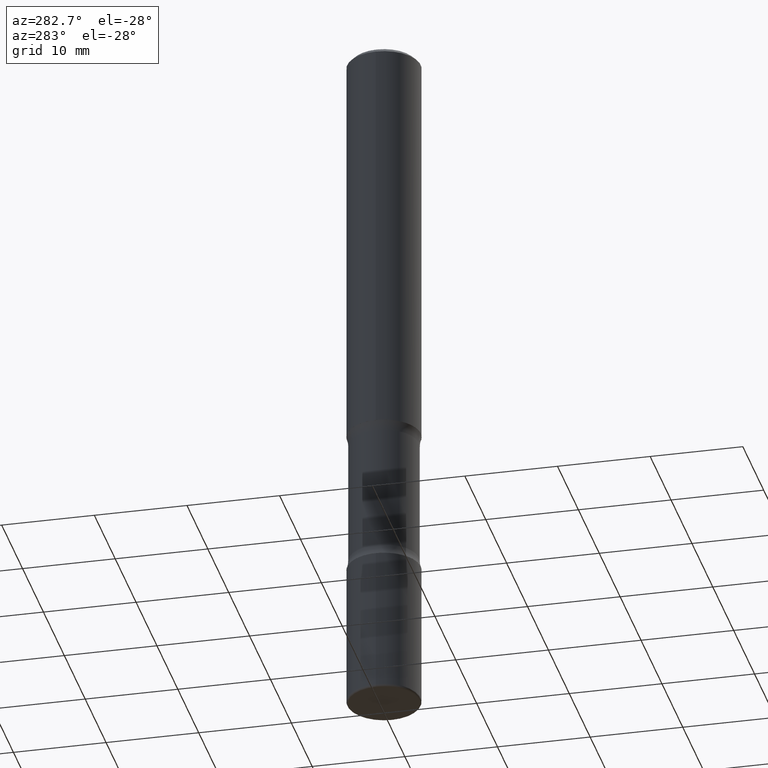
[diagram: clean part render]
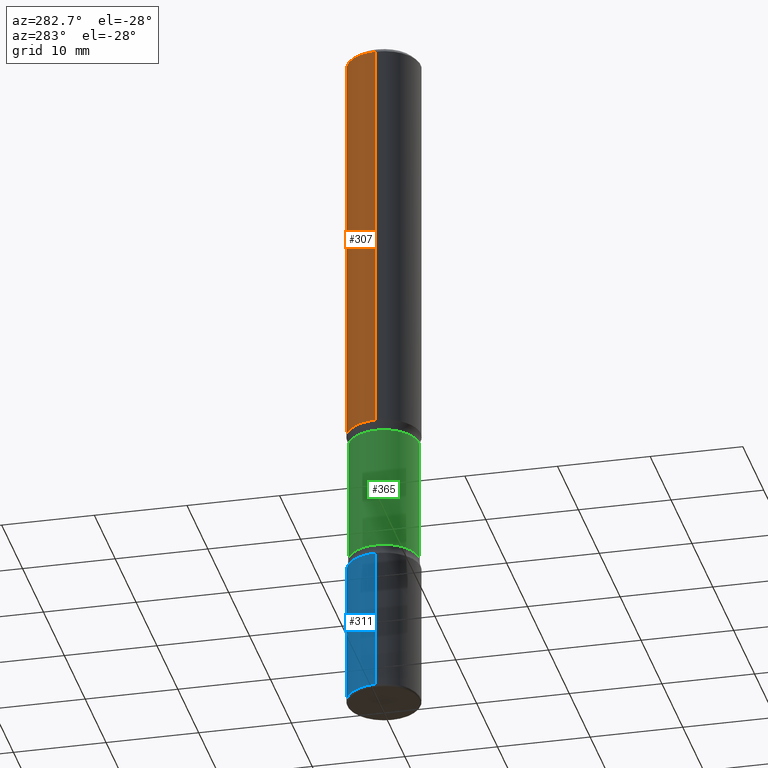
[diagram: same view with three faces highlighted in distinct colors, each labeled with its STEP entity id]
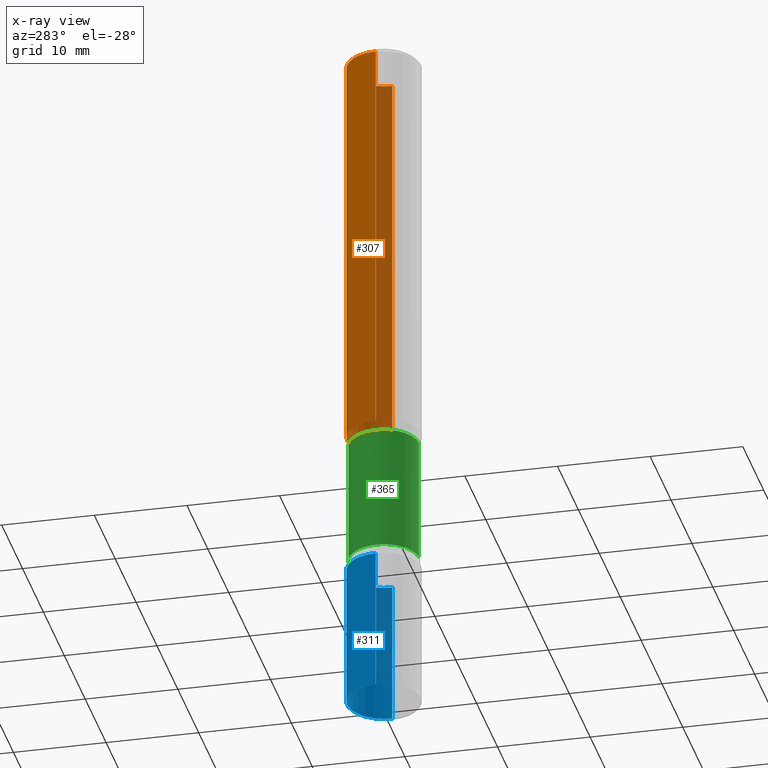
[diagram: x-ray of the same camera — body ghosted, the three highlighted faces saturated]
A machine part, auxiliary view with three faces highlighted in distinct colors.
The next image is the same camera in x-ray (body ghosted, the three faces saturated) — at least one of them is partly hidden behind the body in this view.
Their STEP definitions:

[orange] entity #307 — the highlighted cylindrical surface (partial cylindrical patch) has radius 3.9687 mm, axis along (-0, 0, 1).
#16 = ORIENTED_EDGE ( 'NONE', *, *, #265, .T. ) ;
#17 = CARTESIAN_POINT ( 'NONE',  ( 0.1562500000000000833, -7.201180261363985422E-15, -1.750000000000000444 ) ) ;
#27 = CARTESIAN_POINT ( 'NONE',  ( -0.1562500000000000833, -1.979737960251025472E-15, -1.750000000000000444 ) ) ;
#32 = ORIENTED_EDGE ( 'NONE', *, *, #301, .F. ) ;
#48 = DIRECTION ( 'NONE',  ( 1.000000000000000000, -6.982962677686266711E-15, 4.876176775795936353E-29 ) ) ;
#53 = DIRECTION ( 'NONE',  ( 1.000000000000000000, -6.982962677686265133E-15, 0.000000000000000000 ) ) ;
#59 = CIRCLE ( 'NONE', #130, 0.1562500000000000833 ) ;
#66 = AXIS2_PLACEMENT_3D ( 'NONE', #473, #438, #48 ) ;
#72 = FACE_OUTER_BOUND ( 'NONE', #92, .T. ) ;
#80 = EDGE_CURVE ( 'NONE', #261, #515, #308, .T. ) ;
#91 = DIRECTION ( 'NONE',  ( -2.445468806185136597E-29, 3.491481338843145583E-15, 1.000000000000000000 ) ) ;
#92 = EDGE_LOOP ( 'NONE', ( #16, #212, #32, #126 ) ) ;
#94 = VECTOR ( 'NONE', #534, 39.37007874015748143 ) ;
#98 = CARTESIAN_POINT ( 'NONE',  ( 0.1562499999999998612, -1.141782438928663922E-15, -0.02000000000000000042 ) ) ;
#126 = ORIENTED_EDGE ( 'NONE', *, *, #80, .F. ) ;
#130 = AXIS2_PLACEMENT_3D ( 'NONE', #491, #91, #53 ) ;
#137 = VECTOR ( 'NONE', #374, 39.37007874015748143 ) ;
#155 = LINE ( 'NONE', #201, #137 ) ;
#201 = CARTESIAN_POINT ( 'NONE',  ( -0.1562499999999999722, 1.110223024625156343E-15, -7.685836078523288357E-30 ) ) ;
#209 = DIRECTION ( 'NONE',  ( -2.445468806185136597E-29, 3.491481338843145583E-15, 1.000000000000000000 ) ) ;
#212 = ORIENTED_EDGE ( 'NONE', *, *, #283, .T. ) ;
#216 = AXIS2_PLACEMENT_3D ( 'NONE', #330, #209, #513 ) ;
#225 = CARTESIAN_POINT ( 'NONE',  ( 0.1562499999999999722, -1.091087918388478976E-15, 7.619026212181148976E-30 ) ) ;
#261 = VERTEX_POINT ( 'NONE', #17 ) ;
#265 = EDGE_CURVE ( 'NONE', #261, #392, #59, .T. ) ;
#283 = EDGE_CURVE ( 'NONE', #392, #481, #155, .T. ) ;
#301 = EDGE_CURVE ( 'NONE', #515, #481, #434, .T. ) ;
#307 = ADVANCED_FACE ( 'NONE', ( #72 ), #332, .T. ) ;
#308 = LINE ( 'NONE', #225, #94 ) ;
#330 = CARTESIAN_POINT ( 'NONE',  ( 4.890937612370273159E-31, -6.982962677686291609E-17, -0.02000000000000000042 ) ) ;
#332 = CYLINDRICAL_SURFACE ( 'NONE', #66, 0.1562499999999999722 ) ;
#366 = CARTESIAN_POINT ( 'NONE',  ( -0.1562499999999998612, 1.021258291611615284E-15, -0.02000000000000000042 ) ) ;
#374 = DIRECTION ( 'NONE',  ( -2.445468806185136877E-29, 3.491481338843145188E-15, 1.000000000000000000 ) ) ;
#392 = VERTEX_POINT ( 'NONE', #27 ) ;
#434 = CIRCLE ( 'NONE', #216, 0.1562499999999998612 ) ;
#438 = DIRECTION ( 'NONE',  ( -2.445468806185136597E-29, 3.491481338843145583E-15, 1.000000000000000000 ) ) ;
#473 = CARTESIAN_POINT ( 'NONE',  ( 0.000000000000000000, 0.000000000000000000, 0.000000000000000000 ) ) ;
#481 = VERTEX_POINT ( 'NONE', #366 ) ;
#491 = CARTESIAN_POINT ( 'NONE',  ( 4.279570410823989605E-29, -6.110092342975506249E-15, -1.750000000000000444 ) ) ;
#513 = DIRECTION ( 'NONE',  ( 1.000000000000000000, -6.982962677686266711E-15, 0.000000000000000000 ) ) ;
#515 = VERTEX_POINT ( 'NONE', #98 ) ;
#534 = DIRECTION ( 'NONE',  ( -2.445468806185136877E-29, 3.491481338843145188E-15, 1.000000000000000000 ) ) ;

[blue] entity #311 — the highlighted cylindrical surface (partial cylindrical patch) has radius 3.9688 mm, axis along (-0, 0, 1).
#1 = VERTEX_POINT ( 'NONE', #132 ) ;
#40 = ORIENTED_EDGE ( 'NONE', *, *, #482, .F. ) ;
#106 = DIRECTION ( 'NONE',  ( -2.445468806185136597E-29, 3.491481338843145583E-15, 1.000000000000000000 ) ) ;
#132 = CARTESIAN_POINT ( 'NONE',  ( 0.1562500000000001110, -9.383356098140953236E-15, -2.375000000000000444 ) ) ;
#144 = CARTESIAN_POINT ( 'NONE',  ( -0.1562500000000001110, -8.255675666821583237E-15, -2.375000000000000444 ) ) ;
#158 = ORIENTED_EDGE ( 'NONE', *, *, #404, .T. ) ;
#166 = EDGE_LOOP ( 'NONE', ( #485, #158, #340, #40 ) ) ;
#196 = CARTESIAN_POINT ( 'NONE',  ( 7.311951730493559366E-29, -1.043952920314100786E-14, -2.990000000000000657 ) ) ;
#211 = CARTESIAN_POINT ( 'NONE',  ( 0.1562500000000001665, -1.153061712152948940E-14, -2.990000000000000657 ) ) ;
#237 = CIRCLE ( 'NONE', #405, 0.1562500000000001110 ) ;
#242 = CARTESIAN_POINT ( 'NONE',  ( -0.1562500000000001388, 1.110223024625157526E-15, -7.685836078523296765E-30 ) ) ;
#243 = CARTESIAN_POINT ( 'NONE',  ( 0.000000000000000000, 0.000000000000000000, 0.000000000000000000 ) ) ;
#244 = AXIS2_PLACEMENT_3D ( 'NONE', #243, #106, #551 ) ;
#271 = CARTESIAN_POINT ( 'NONE',  ( 0.1562500000000001388, -1.091087918388480160E-15, 7.619026212181157383E-30 ) ) ;
#274 = DIRECTION ( 'NONE',  ( -2.445468806185136597E-29, 3.491481338843145583E-15, 1.000000000000000000 ) ) ;
#275 = DIRECTION ( 'NONE',  ( -2.445468806185136877E-29, 3.491481338843145188E-15, 1.000000000000000000 ) ) ;
#278 = CARTESIAN_POINT ( 'NONE',  ( 5.807988414689700538E-29, -8.292268179752471696E-15, -2.375000000000000444 ) ) ;
#280 = VECTOR ( 'NONE', #275, 39.37007874015748143 ) ;
#311 = ADVANCED_FACE ( 'NONE', ( #548 ), #368, .T. ) ;
#331 = CARTESIAN_POINT ( 'NONE',  ( -0.1562500000000001665, -9.329306178515849742E-15, -2.990000000000000657 ) ) ;
#334 = EDGE_CURVE ( 'NONE', #517, #555, #338, .T. ) ;
#338 = CIRCLE ( 'NONE', #359, 0.1562500000000001388 ) ;
#340 = ORIENTED_EDGE ( 'NONE', *, *, #382, .F. ) ;
#359 = AXIS2_PLACEMENT_3D ( 'NONE', #196, #460, #416 ) ;
#364 = LINE ( 'NONE', #242, #280 ) ;
#368 = CYLINDRICAL_SURFACE ( 'NONE', #244, 0.1562500000000001388 ) ;
#382 = EDGE_CURVE ( 'NONE', #1, #385, #237, .T. ) ;
#385 = VERTEX_POINT ( 'NONE', #144 ) ;
#404 = EDGE_CURVE ( 'NONE', #555, #385, #364, .T. ) ;
#405 = AXIS2_PLACEMENT_3D ( 'NONE', #278, #274, #506 ) ;
#416 = DIRECTION ( 'NONE',  ( 1.000000000000000000, -6.982962677686269077E-15, 0.000000000000000000 ) ) ;
#460 = DIRECTION ( 'NONE',  ( -2.445468806185136597E-29, 3.491481338843145583E-15, 1.000000000000000000 ) ) ;
#482 = EDGE_CURVE ( 'NONE', #517, #1, #538, .T. ) ;
#485 = ORIENTED_EDGE ( 'NONE', *, *, #334, .T. ) ;
#506 = DIRECTION ( 'NONE',  ( 1.000000000000000000, -6.982962677686270655E-15, 0.000000000000000000 ) ) ;
#507 = VECTOR ( 'NONE', #544, 39.37007874015748143 ) ;
#517 = VERTEX_POINT ( 'NONE', #211 ) ;
#538 = LINE ( 'NONE', #271, #507 ) ;
#544 = DIRECTION ( 'NONE',  ( -2.445468806185136877E-29, 3.491481338843145188E-15, 1.000000000000000000 ) ) ;
#548 = FACE_OUTER_BOUND ( 'NONE', #166, .T. ) ;
#551 = DIRECTION ( 'NONE',  ( 1.000000000000000000, -6.982962677686266711E-15, 4.876176775795936353E-29 ) ) ;
#555 = VERTEX_POINT ( 'NONE', #331 ) ;

[green] entity #365 — the highlighted cylindrical surface (edge-blend (fillet) strip) has radius 3.7703 mm, axis along (0, -0, -1).
#7 = VERTEX_POINT ( 'NONE', #357 ) ;
#28 = EDGE_CURVE ( 'NONE', #324, #432, #30, .T. ) ;
#30 = CIRCLE ( 'NONE', #395, 0.1484375000000000278 ) ;
#62 = DIRECTION ( 'NONE',  ( 6.982962677686266711E-15, 1.000000000000000000, -3.680805717779217644E-15 ) ) ;
#65 = CARTESIAN_POINT ( 'NONE',  ( 7.385442397868472267E-29, -1.040422170319851125E-14, -2.999999999999999556 ) ) ;
#82 = CARTESIAN_POINT ( 'NONE',  ( 5.698202263795362163E-29, -8.145282435205020267E-15, -2.331501840915390478 ) ) ;
#93 = EDGE_LOOP ( 'NONE', ( #341, #161, #390, #354 ) ) ;
#103 = CARTESIAN_POINT ( 'NONE',  ( -1.018355171544137761E-15, -0.1484375000000104083, -2.999999999999999112 ) ) ;
#146 = VECTOR ( 'NONE', #192, 39.37007874015748143 ) ;
#152 = AXIS2_PLACEMENT_3D ( 'NONE', #65, #241, #62 ) ;
#153 = AXIS2_PLACEMENT_3D ( 'NONE', #82, #160, #333 ) ;
#160 = DIRECTION ( 'NONE',  ( 2.523926373086038410E-29, -3.379125637513666367E-15, -1.000000000000000000 ) ) ;
#161 = ORIENTED_EDGE ( 'NONE', *, *, #28, .T. ) ;
#171 = CARTESIAN_POINT ( 'NONE',  ( -1.045153991847949569E-15, -0.1484375000000081601, -2.331501840915390034 ) ) ;
#192 = DIRECTION ( 'NONE',  ( 2.523926373086038410E-29, -3.379125637513666367E-15, -1.000000000000000000 ) ) ;
#226 = VECTOR ( 'NONE', #439, 39.37007874015748143 ) ;
#235 = EDGE_CURVE ( 'NONE', #432, #7, #441, .T. ) ;
#241 = DIRECTION ( 'NONE',  ( 2.523926373086038410E-29, -3.379125637513666367E-15, -1.000000000000000000 ) ) ;
#253 = VERTEX_POINT ( 'NONE', #171 ) ;
#282 = CARTESIAN_POINT ( 'NONE',  ( 1.036533522469098602E-15, 0.1484374999999936995, -1.793498159084610633 ) ) ;
#294 = DIRECTION ( 'NONE',  ( 6.982962677686265133E-15, 1.000000000000000000, -3.680805717779216855E-15 ) ) ;
#316 = CYLINDRICAL_SURFACE ( 'NONE', #152, 0.1484375000000000000 ) ;
#322 = LINE ( 'NONE', #103, #146 ) ;
#324 = VERTEX_POINT ( 'NONE', #372 ) ;
#333 = DIRECTION ( 'NONE',  ( 6.982962677686265133E-15, 1.000000000000000000, -3.680805717779217644E-15 ) ) ;
#341 = ORIENTED_EDGE ( 'NONE', *, *, #470, .F. ) ;
#354 = ORIENTED_EDGE ( 'NONE', *, *, #523, .F. ) ;
#357 = CARTESIAN_POINT ( 'NONE',  ( 1.036533522469112013E-15, 0.1484374999999918399, -2.331501840915391366 ) ) ;
#365 = ADVANCED_FACE ( 'NONE', ( #465 ), #316, .T. ) ;
#372 = CARTESIAN_POINT ( 'NONE',  ( -1.045153991847964360E-15, -0.1484375000000063560, -1.793498159084609522 ) ) ;
#390 = ORIENTED_EDGE ( 'NONE', *, *, #235, .T. ) ;
#395 = AXIS2_PLACEMENT_3D ( 'NONE', #541, #414, #294 ) ;
#406 = CIRCLE ( 'NONE', #153, 0.1484375000000000000 ) ;
#414 = DIRECTION ( 'NONE',  ( 2.523926373086038410E-29, -3.379125637513666367E-15, -1.000000000000000000 ) ) ;
#432 = VERTEX_POINT ( 'NONE', #282 ) ;
#439 = DIRECTION ( 'NONE',  ( 2.523926373086038410E-29, -3.379125637513666367E-15, -1.000000000000000000 ) ) ;
#441 = LINE ( 'NONE', #489, #226 ) ;
#465 = FACE_OUTER_BOUND ( 'NONE', #93, .T. ) ;
#470 = EDGE_CURVE ( 'NONE', #324, #253, #322, .T. ) ;
#489 = CARTESIAN_POINT ( 'NONE',  ( 1.036533522469128973E-15, 0.1484374999999896194, -3.000000000000000444 ) ) ;
#523 = EDGE_CURVE ( 'NONE', #253, #7, #406, .T. ) ;
#541 = CARTESIAN_POINT ( 'NONE',  ( 4.340320582405264943E-29, -6.327300400853882778E-15, -1.793498159084609966 ) ) ;